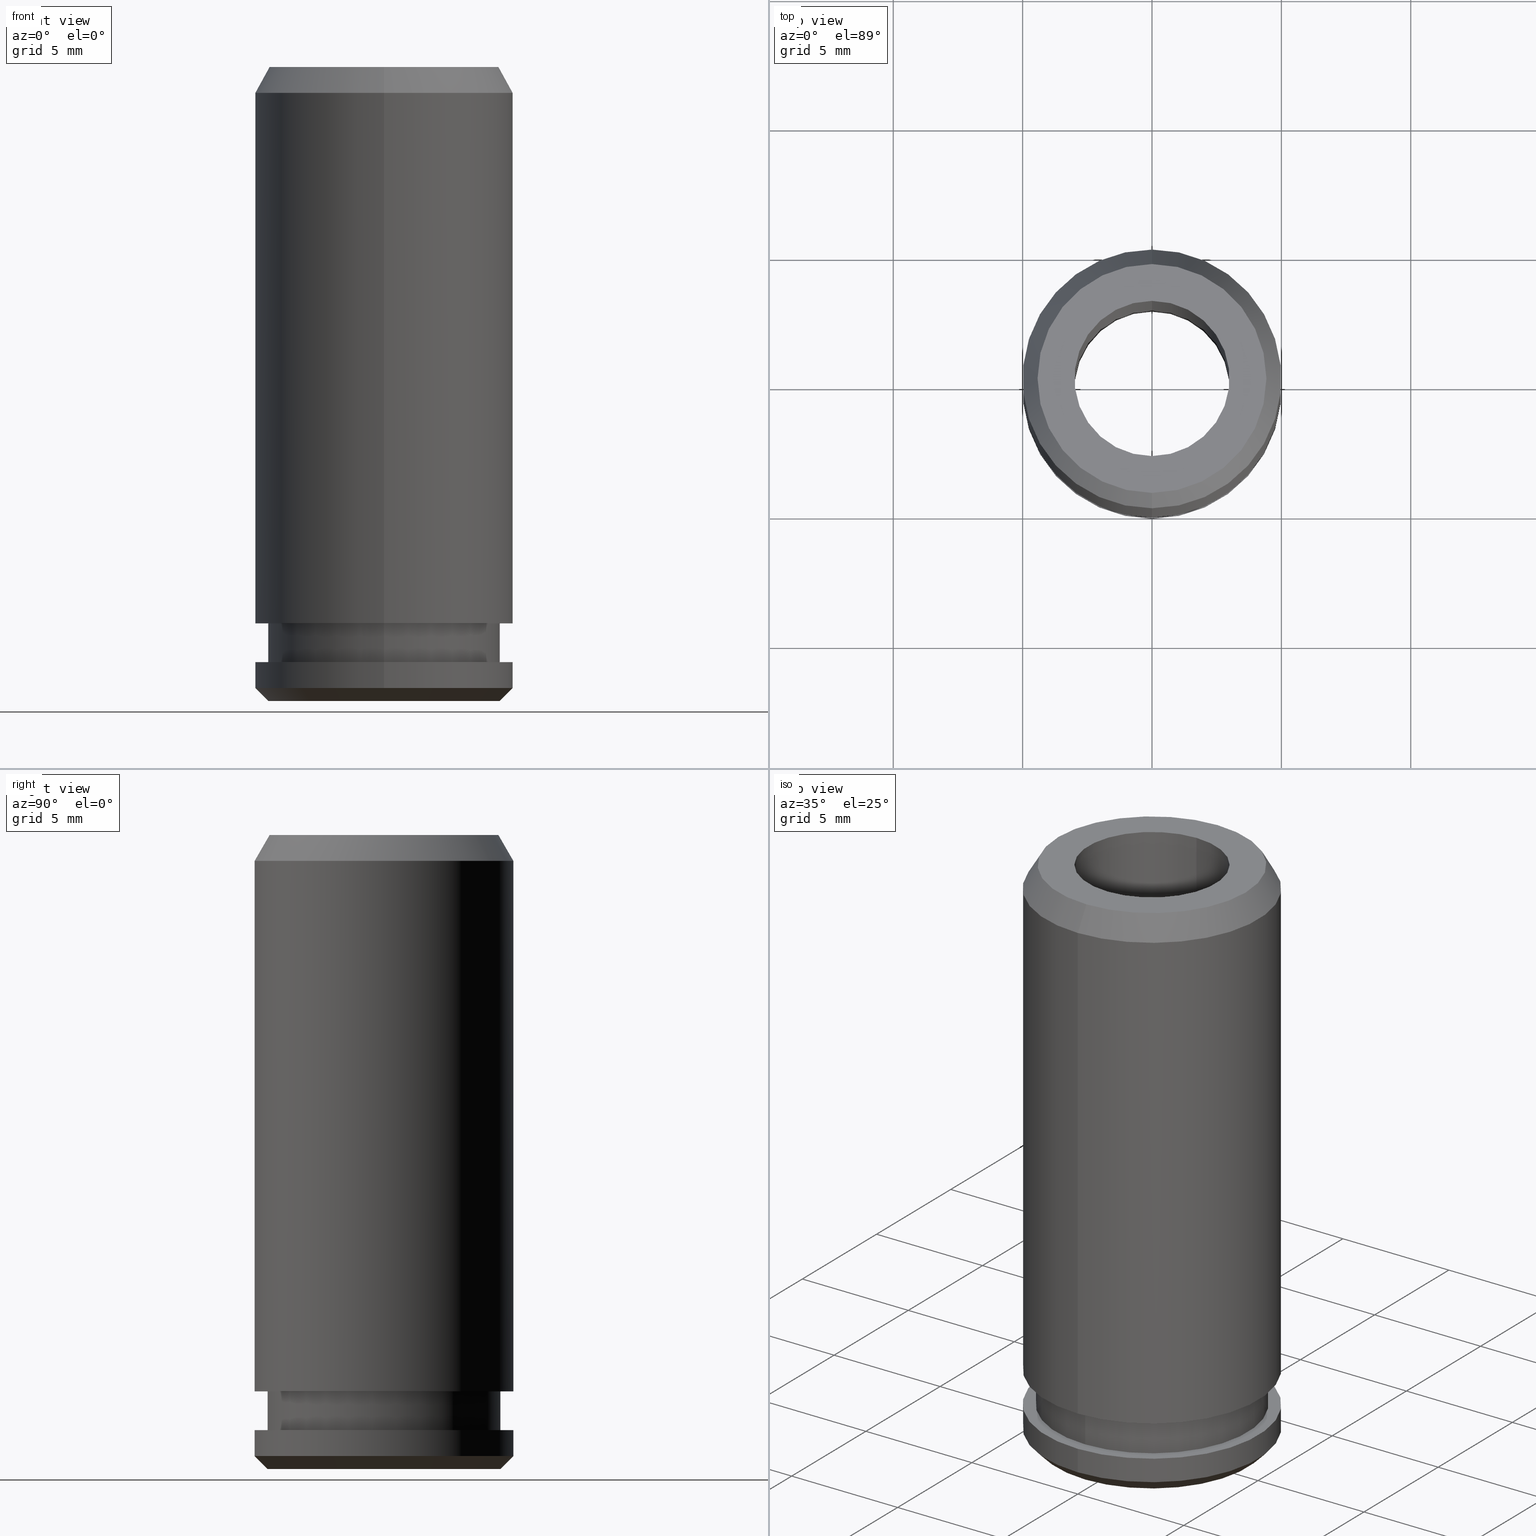
[diagram: canonical four-view strip — front | top / right | iso, engineering-drawing reading convention]
A machine part, canonical four-view strip (front | top / right | iso — engineering-drawing reading convention). The complete STEP part file that produces these views, byte-faithful:
ISO-10303-21;
HEADER;
FILE_DESCRIPTION(('no description'),'unknown implementation level');
FILE_NAME('49BABD9E-ACFB-4AF9-9D39-02AE5C92AB0E_export.stp','  ',('CIMSOURCE GmbH'),('CADClick - KiM GmbH - www.kimweb.de'),'unknown preprocess','ACIS','unknown authorization');
FILE_SCHEMA(('automotive_design'));
ENDSEC;
DATA;
#1=MECHANICAL_DESIGN_GEOMETRIC_PRESENTATION_REPRESENTATION(' ',(#10,#11,#12,#13,#14,#15,#16,#17,#18,#19,#20,#21,#22,#23,#24,#25,#26,#27,#28,#29,#30,#31,#32,#33,#34,#35,#36,#37,#38,#39,#40,#41,#42,#43,#44,#45,#46,#47,#48,#49,#50,#51,#52,#53,#54,#55,#56,#57,#58,#59,#60,#61,#62,#63,#64,#65,#66,#67,#68,#69,#70,#71,#72,#73,#74,#75,#76,#77,#78,#79,#80,#81,#82,#83,#84,#85),#6);
#2=PRODUCT_DEFINITION_CONTEXT('',#86,'design');
#3=APPLICATION_PROTOCOL_DEFINITION('INTERNATIONAL STANDARD','automotive_design',1994,#86);
#4=PRODUCT_CATEGORY_RELATIONSHIP('NONE','NONE',#87,#88);
#5=SHAPE_DEFINITION_REPRESENTATION(#89,#90);
#6= (GEOMETRIC_REPRESENTATION_CONTEXT(3)GLOBAL_UNCERTAINTY_ASSIGNED_CONTEXT((#93))GLOBAL_UNIT_ASSIGNED_CONTEXT((#95,#96,#97))REPRESENTATION_CONTEXT('NONE','WORKSPACE'));
#10=STYLED_ITEM('',(#99),#100);
#11=STYLED_ITEM('',(#101),#102);
#12=STYLED_ITEM('',(#103),#104);
#13=STYLED_ITEM('',(#105),#106);
#14=STYLED_ITEM('',(#107),#108);
#15=STYLED_ITEM('',(#109),#110);
#16=STYLED_ITEM('',(#111),#112);
#17=STYLED_ITEM('',(#113),#114);
#18=STYLED_ITEM('',(#115),#116);
#19=STYLED_ITEM('',(#117),#118);
#20=STYLED_ITEM('',(#119),#120);
#21=STYLED_ITEM('',(#121),#122);
#22=STYLED_ITEM('',(#123),#124);
#23=STYLED_ITEM('',(#125),#126);
#24=STYLED_ITEM('',(#127),#128);
#25=STYLED_ITEM('',(#129),#130);
#26=STYLED_ITEM('',(#131),#132);
#27=STYLED_ITEM('',(#133),#134);
#28=STYLED_ITEM('',(#135),#136);
#29=STYLED_ITEM('',(#137),#138);
#30=STYLED_ITEM('',(#139),#140);
#31=STYLED_ITEM('',(#141),#142);
#32=STYLED_ITEM('',(#143),#144);
#33=STYLED_ITEM('',(#145),#146);
#34=STYLED_ITEM('',(#147),#148);
#35=STYLED_ITEM('',(#149),#150);
#36=STYLED_ITEM('',(#151),#152);
#37=STYLED_ITEM('',(#153),#154);
#38=STYLED_ITEM('',(#155),#156);
#39=STYLED_ITEM('',(#157),#158);
#40=STYLED_ITEM('',(#159),#160);
#41=STYLED_ITEM('',(#161),#162);
#42=STYLED_ITEM('',(#163),#164);
#43=STYLED_ITEM('',(#165),#166);
#44=STYLED_ITEM('',(#167),#168);
#45=STYLED_ITEM('',(#169),#170);
#46=STYLED_ITEM('',(#171),#172);
#47=STYLED_ITEM('',(#173),#174);
#48=STYLED_ITEM('',(#175),#176);
#49=STYLED_ITEM('',(#177),#178);
#50=STYLED_ITEM('',(#179),#180);
#51=STYLED_ITEM('',(#181),#182);
#52=STYLED_ITEM('',(#183),#184);
#53=STYLED_ITEM('',(#185),#186);
#54=STYLED_ITEM('',(#187),#188);
#55=STYLED_ITEM('',(#189),#190);
#56=STYLED_ITEM('',(#191),#192);
#57=STYLED_ITEM('',(#193),#194);
#58=STYLED_ITEM('',(#195),#196);
#59=STYLED_ITEM('',(#197),#198);
#60=STYLED_ITEM('',(#199),#200);
#61=STYLED_ITEM('',(#201),#202);
#62=STYLED_ITEM('',(#203),#204);
#63=STYLED_ITEM('',(#205),#206);
#64=STYLED_ITEM('',(#207),#208);
#65=STYLED_ITEM('',(#209),#210);
#66=STYLED_ITEM('',(#211),#212);
#67=STYLED_ITEM('',(#213),#214);
#68=STYLED_ITEM('',(#215),#216);
#69=STYLED_ITEM('',(#217),#218);
#70=STYLED_ITEM('',(#219),#220);
#71=STYLED_ITEM('',(#221),#222);
#72=STYLED_ITEM('',(#223),#224);
#73=STYLED_ITEM('',(#225),#226);
#74=STYLED_ITEM('',(#227),#228);
#75=STYLED_ITEM('',(#229),#230);
#76=STYLED_ITEM('',(#231),#232);
#77=STYLED_ITEM('',(#233),#234);
#78=STYLED_ITEM('',(#235),#236);
#79=STYLED_ITEM('',(#237),#238);
#80=STYLED_ITEM('',(#239),#240);
#81=STYLED_ITEM('',(#241),#242);
#82=STYLED_ITEM('',(#243),#244);
#83=STYLED_ITEM('',(#245),#246);
#84=STYLED_ITEM('',(#247),#248);
#85=STYLED_ITEM('',(#249),#250);
#86=APPLICATION_CONTEXT(' ');
#87=PRODUCT_CATEGORY('part','NONE');
#88=PRODUCT_RELATED_PRODUCT_CATEGORY('detail',' ',(#251));
#89=PRODUCT_DEFINITION_SHAPE('NONE','NONE',#252);
#90=ADVANCED_BREP_SHAPE_REPRESENTATION('NONE',(#253,#254),#6);
#93=UNCERTAINTY_MEASURE_WITH_UNIT(LENGTH_MEASURE(1.0E-006),#95,'','');
#95= (CONVERSION_BASED_UNIT('MILLIMETRE',#257)LENGTH_UNIT()NAMED_UNIT(#260));
#96= (NAMED_UNIT(#262)PLANE_ANGLE_UNIT()SI_UNIT($,.RADIAN.));
#97= (NAMED_UNIT(#262)SOLID_ANGLE_UNIT()SI_UNIT($,.STERADIAN.));
#99=PRESENTATION_STYLE_ASSIGNMENT((#268));
#100=VERTEX_POINT('NONE',#269);
#101=PRESENTATION_STYLE_ASSIGNMENT((#270));
#102=EDGE_CURVE('NONE',#132,#218,#271,.T.);
#103=PRESENTATION_STYLE_ASSIGNMENT((#272));
#104=EDGE_CURVE('NONE',#120,#222,#273,.T.);
#105=PRESENTATION_STYLE_ASSIGNMENT((#274));
#106=VERTEX_POINT('NONE',#275);
#107=PRESENTATION_STYLE_ASSIGNMENT((#276));
#108=EDGE_CURVE('NONE',#168,#130,#277,.T.);
#109=PRESENTATION_STYLE_ASSIGNMENT((#278));
#110=EDGE_CURVE('NONE',#166,#124,#279,.T.);
#111=PRESENTATION_STYLE_ASSIGNMENT((#280));
#112=ADVANCED_FACE('NONE',(#281,#282),#283,.T.);
#113=PRESENTATION_STYLE_ASSIGNMENT((#284));
#114=EDGE_CURVE('NONE',#244,#120,#285,.T.);
#115=PRESENTATION_STYLE_ASSIGNMENT((#286));
#116=EDGE_CURVE('NONE',#100,#154,#287,.T.);
#117=PRESENTATION_STYLE_ASSIGNMENT((#288));
#118=EDGE_CURVE('NONE',#166,#130,#289,.T.);
#119=PRESENTATION_STYLE_ASSIGNMENT((#290));
#120=VERTEX_POINT('NONE',#291);
#121=PRESENTATION_STYLE_ASSIGNMENT((#292));
#122=VERTEX_POINT('NONE',#293);
#123=PRESENTATION_STYLE_ASSIGNMENT((#294));
#124=VERTEX_POINT('NONE',#295);
#125=PRESENTATION_STYLE_ASSIGNMENT((#296));
#126=VERTEX_POINT('NONE',#297);
#127=PRESENTATION_STYLE_ASSIGNMENT((#298));
#128=VERTEX_POINT('NONE',#299);
#129=PRESENTATION_STYLE_ASSIGNMENT((#300));
#130=VERTEX_POINT('NONE',#301);
#131=PRESENTATION_STYLE_ASSIGNMENT((#302));
#132=VERTEX_POINT('NONE',#303);
#133=PRESENTATION_STYLE_ASSIGNMENT((#304));
#134=VERTEX_POINT('NONE',#305);
#135=PRESENTATION_STYLE_ASSIGNMENT((#306));
#136=EDGE_CURVE('NONE',#222,#238,#307,.T.);
#137=PRESENTATION_STYLE_ASSIGNMENT((#308));
#138=EDGE_CURVE('NONE',#106,#134,#309,.T.);
#139=PRESENTATION_STYLE_ASSIGNMENT((#310));
#140=EDGE_CURVE('NONE',#122,#244,#311,.T.);
#141=PRESENTATION_STYLE_ASSIGNMENT((#312));
#142=ADVANCED_FACE('NONE',(#313),#314,.T.);
#143=PRESENTATION_STYLE_ASSIGNMENT((#315));
#144=EDGE_CURVE('NONE',#106,#128,#316,.T.);
#145=PRESENTATION_STYLE_ASSIGNMENT((#317));
#146=EDGE_CURVE('NONE',#130,#168,#318,.T.);
#147=PRESENTATION_STYLE_ASSIGNMENT((#319));
#148=EDGE_CURVE('NONE',#134,#212,#320,.T.);
#149=PRESENTATION_STYLE_ASSIGNMENT((#321));
#150=EDGE_CURVE('NONE',#100,#164,#322,.T.);
#151=PRESENTATION_STYLE_ASSIGNMENT((#323));
#152=ADVANCED_FACE('NONE',(#324,#325),#326,.T.);
#153=PRESENTATION_STYLE_ASSIGNMENT((#327));
#154=VERTEX_POINT('NONE',#328);
#155=PRESENTATION_STYLE_ASSIGNMENT((#329));
#156=EDGE_CURVE('NONE',#122,#178,#330,.T.);
#157=PRESENTATION_STYLE_ASSIGNMENT((#331));
#158=EDGE_CURVE('NONE',#212,#126,#332,.T.);
#159=PRESENTATION_STYLE_ASSIGNMENT((#333));
#160=ADVANCED_FACE('NONE',(#334),#335,.T.);
#161=PRESENTATION_STYLE_ASSIGNMENT((#336));
#162=ADVANCED_FACE('NONE',(#337),#338,.T.);
#163=PRESENTATION_STYLE_ASSIGNMENT((#339));
#164=VERTEX_POINT('NONE',#340);
#165=PRESENTATION_STYLE_ASSIGNMENT((#341));
#166=VERTEX_POINT('NONE',#342);
#167=PRESENTATION_STYLE_ASSIGNMENT((#343));
#168=VERTEX_POINT('NONE',#344);
#169=PRESENTATION_STYLE_ASSIGNMENT((#345));
#170=ADVANCED_FACE('NONE',(#346),#347,.T.);
#171=PRESENTATION_STYLE_ASSIGNMENT((#348));
#172=ADVANCED_FACE('NONE',(#349),#350,.F.);
#173=PRESENTATION_STYLE_ASSIGNMENT((#351));
#174=EDGE_CURVE('NONE',#218,#168,#352,.T.);
#175=PRESENTATION_STYLE_ASSIGNMENT((#353));
#176=EDGE_CURVE('NONE',#244,#238,#354,.T.);
#177=PRESENTATION_STYLE_ASSIGNMENT((#355));
#178=VERTEX_POINT('NONE',#356);
#179=PRESENTATION_STYLE_ASSIGNMENT((#357));
#180=ADVANCED_FACE('NONE',(#358),#359,.T.);
#181=PRESENTATION_STYLE_ASSIGNMENT((#360));
#182=EDGE_CURVE('NONE',#124,#166,#361,.T.);
#183=PRESENTATION_STYLE_ASSIGNMENT((#362));
#184=EDGE_CURVE('NONE',#178,#120,#363,.T.);
#185=PRESENTATION_STYLE_ASSIGNMENT((#364));
#186=ADVANCED_FACE('NONE',(#365),#366,.F.);
#187=PRESENTATION_STYLE_ASSIGNMENT((#367));
#188=EDGE_CURVE('NONE',#242,#164,#368,.T.);
#189=PRESENTATION_STYLE_ASSIGNMENT((#369));
#190=ADVANCED_FACE('NONE',(#370),#371,.F.);
#191=PRESENTATION_STYLE_ASSIGNMENT((#372));
#192=EDGE_CURVE('NONE',#126,#198,#373,.T.);
#193=PRESENTATION_STYLE_ASSIGNMENT((#374));
#194=EDGE_CURVE('NONE',#198,#126,#375,.T.);
#195=PRESENTATION_STYLE_ASSIGNMENT((#376));
#196=EDGE_CURVE('NONE',#238,#222,#377,.T.);
#197=PRESENTATION_STYLE_ASSIGNMENT((#378));
#198=VERTEX_POINT('NONE',#379);
#199=PRESENTATION_STYLE_ASSIGNMENT((#380));
#200=ADVANCED_FACE('NONE',(#381,#382),#383,.T.);
#201=PRESENTATION_STYLE_ASSIGNMENT((#384));
#202=EDGE_CURVE('NONE',#154,#100,#385,.T.);
#203=PRESENTATION_STYLE_ASSIGNMENT((#386));
#204=EDGE_CURVE('NONE',#128,#212,#387,.T.);
#205=PRESENTATION_STYLE_ASSIGNMENT((#388));
#206=EDGE_CURVE('NONE',#178,#122,#389,.T.);
#207=PRESENTATION_STYLE_ASSIGNMENT((#390));
#208=ADVANCED_FACE('NONE',(#391),#392,.T.);
#209=PRESENTATION_STYLE_ASSIGNMENT((#393));
#210=EDGE_CURVE('NONE',#132,#130,#394,.T.);
#211=PRESENTATION_STYLE_ASSIGNMENT((#395));
#212=VERTEX_POINT('NONE',#396);
#213=PRESENTATION_STYLE_ASSIGNMENT((#397));
#214=ADVANCED_FACE('NONE',(#398),#399,.F.);
#215=PRESENTATION_STYLE_ASSIGNMENT((#400));
#216=ADVANCED_FACE('NONE',(#401,#402),#403,.T.);
#217=PRESENTATION_STYLE_ASSIGNMENT((#404));
#218=VERTEX_POINT('NONE',#405);
#219=PRESENTATION_STYLE_ASSIGNMENT((#406));
#220=EDGE_CURVE('NONE',#164,#242,#407,.T.);
#221=PRESENTATION_STYLE_ASSIGNMENT((#408));
#222=VERTEX_POINT('NONE',#409);
#223=PRESENTATION_STYLE_ASSIGNMENT((#410));
#224=ADVANCED_FACE('NONE',(#411),#412,.T.);
#225=PRESENTATION_STYLE_ASSIGNMENT((#413));
#226=ADVANCED_FACE('NONE',(#414),#415,.T.);
#227=PRESENTATION_STYLE_ASSIGNMENT((#416));
#228=EDGE_CURVE('NONE',#218,#132,#417,.T.);
#229=PRESENTATION_STYLE_ASSIGNMENT((#418));
#230=EDGE_CURVE('NONE',#128,#106,#419,.T.);
#231=PRESENTATION_STYLE_ASSIGNMENT((#420));
#232=EDGE_CURVE('NONE',#212,#134,#421,.T.);
#233=PRESENTATION_STYLE_ASSIGNMENT((#422));
#234=EDGE_CURVE('NONE',#134,#198,#423,.T.);
#235=PRESENTATION_STYLE_ASSIGNMENT((#424));
#236=EDGE_CURVE('NONE',#124,#168,#425,.T.);
#237=PRESENTATION_STYLE_ASSIGNMENT((#426));
#238=VERTEX_POINT('NONE',#427);
#239=PRESENTATION_STYLE_ASSIGNMENT((#428));
#240=ADVANCED_FACE('NONE',(#429),#430,.T.);
#241=PRESENTATION_STYLE_ASSIGNMENT((#431));
#242=VERTEX_POINT('NONE',#432);
#243=PRESENTATION_STYLE_ASSIGNMENT((#433));
#244=VERTEX_POINT('NONE',#434);
#245=PRESENTATION_STYLE_ASSIGNMENT((#435));
#246=EDGE_CURVE('NONE',#154,#242,#436,.T.);
#247=PRESENTATION_STYLE_ASSIGNMENT((#437));
#248=EDGE_CURVE('NONE',#120,#244,#438,.T.);
#249=PRESENTATION_STYLE_ASSIGNMENT((#439));
#250=ADVANCED_FACE('NONE',(#440),#441,.T.);
#251=PRODUCT('NONE','NONE','PART-NONE-DESC',(#442));
#252=PRODUCT_DEFINITION('NONE','NONE',#443,#2);
#253=MANIFOLD_SOLID_BREP('NONE',#444);
#254=AXIS2_PLACEMENT_3D('',#445,#446,#447);
#257=LENGTH_MEASURE_WITH_UNIT(LENGTH_MEASURE(1.0),#448);
#260=DIMENSIONAL_EXPONENTS(1.0,0.0,0.0,0.0,0.0,0.0,0.0);
#262=DIMENSIONAL_EXPONENTS(0.0,0.0,0.0,0.0,0.0,0.0,0.0);
#268=POINT_STYLE(' ',#449,POSITIVE_LENGTH_MEASURE(1.0E-006),#450);
#269=CARTESIAN_POINT('',(-5.5107285922007E-016,4.5,3.0));
#270=CURVE_STYLE('',#451,POSITIVE_LENGTH_MEASURE(1.0E-006),#452);
#271=CIRCLE('',#453,4.5);
#272=CURVE_STYLE('',#454,POSITIVE_LENGTH_MEASURE(1.0E-006),#455);
#273=LINE('',#456,#457);
#274=POINT_STYLE(' ',#458,POSITIVE_LENGTH_MEASURE(1.0E-006),#459);
#275=CARTESIAN_POINT('',(-5.76951836509654E-016,4.42264973081037,24.5));
#276=CURVE_STYLE('',#460,POSITIVE_LENGTH_MEASURE(1.0E-006),#461);
#277=CIRCLE('',#462,5.0);
#278=CURVE_STYLE('',#463,POSITIVE_LENGTH_MEASURE(1.0E-006),#464);
#279=CIRCLE('',#465,5.0);
#280=SURFACE_STYLE_USAGE(.BOTH.,#466);
#281=FACE_OUTER_BOUND('',#467,.T.);
#282=FACE_BOUND('',#468,.T.);
#283=PLANE('',#469);
#284=CURVE_STYLE('',#470,POSITIVE_LENGTH_MEASURE(1.0E-006),#471);
#285=CIRCLE('',#472,3.0);
#286=CURVE_STYLE('',#473,POSITIVE_LENGTH_MEASURE(1.0E-006),#474);
#287=CIRCLE('',#475,4.5);
#288=CURVE_STYLE('',#476,POSITIVE_LENGTH_MEASURE(1.0E-006),#477);
#289=LINE('',#478,#479);
#290=POINT_STYLE(' ',#480,POSITIVE_LENGTH_MEASURE(1.0E-006),#481);
#291=CARTESIAN_POINT('',(-3.67381906146713E-016,3.0,0.519615242270668));
#292=POINT_STYLE(' ',#482,POSITIVE_LENGTH_MEASURE(1.0E-006),#483);
#293=CARTESIAN_POINT('',(0.0,-3.0,24.5));
#294=POINT_STYLE(' ',#484,POSITIVE_LENGTH_MEASURE(1.0E-006),#485);
#295=CARTESIAN_POINT('',(0.0,-5.0,1.5));
#296=POINT_STYLE(' ',#486,POSITIVE_LENGTH_MEASURE(1.0E-006),#487);
#297=CARTESIAN_POINT('',(0.0,-5.0,3.0));
#298=POINT_STYLE(' ',#488,POSITIVE_LENGTH_MEASURE(1.0E-006),#489);
#299=CARTESIAN_POINT('',(0.0,-4.42264973081037,24.5));
#300=POINT_STYLE(' ',#490,POSITIVE_LENGTH_MEASURE(1.0E-006),#491);
#301=CARTESIAN_POINT('',(0.0,5.0,0.5));
#302=POINT_STYLE(' ',#492,POSITIVE_LENGTH_MEASURE(1.0E-006),#493);
#303=CARTESIAN_POINT('',(0.0,4.5,0.0));
#304=POINT_STYLE(' ',#494,POSITIVE_LENGTH_MEASURE(1.0E-006),#495);
#305=CARTESIAN_POINT('',(-6.12303176911188E-016,5.0,23.5));
#306=CURVE_STYLE('',#496,POSITIVE_LENGTH_MEASURE(1.0E-006),#497);
#307=CIRCLE('',#498,3.3);
#308=CURVE_STYLE('',#499,POSITIVE_LENGTH_MEASURE(1.0E-006),#500);
#309=LINE('',#501,#502);
#310=CURVE_STYLE('',#503,POSITIVE_LENGTH_MEASURE(1.0E-006),#504);
#311=LINE('',#505,#506);
#312=SURFACE_STYLE_USAGE(.BOTH.,#507);
#313=FACE_OUTER_BOUND('',#508,.T.);
#314=CONICAL_SURFACE('',#509,4.5,0.785398163397447);
#315=CURVE_STYLE('',#510,POSITIVE_LENGTH_MEASURE(1.0E-006),#511);
#316=CIRCLE('',#512,4.42264973081037);
#317=CURVE_STYLE('',#513,POSITIVE_LENGTH_MEASURE(1.0E-006),#514);
#318=CIRCLE('',#515,5.0);
#319=CURVE_STYLE('',#516,POSITIVE_LENGTH_MEASURE(1.0E-006),#517);
#320=CIRCLE('',#518,5.0);
#321=CURVE_STYLE('',#519,POSITIVE_LENGTH_MEASURE(1.0E-006),#520);
#322=LINE('',#521,#522);
#323=SURFACE_STYLE_USAGE(.BOTH.,#523);
#324=FACE_OUTER_BOUND('',#524,.T.);
#325=FACE_BOUND('',#525,.T.);
#326=PLANE('',#526);
#327=POINT_STYLE(' ',#527,POSITIVE_LENGTH_MEASURE(1.0E-006),#528);
#328=CARTESIAN_POINT('',(0.0,-4.5,3.0));
#329=CURVE_STYLE('',#529,POSITIVE_LENGTH_MEASURE(1.0E-006),#530);
#330=CIRCLE('',#531,3.0);
#331=CURVE_STYLE('',#532,POSITIVE_LENGTH_MEASURE(1.0E-006),#533);
#332=LINE('',#534,#535);
#333=SURFACE_STYLE_USAGE(.BOTH.,#536);
#334=FACE_OUTER_BOUND('',#537,.T.);
#335=CYLINDRICAL_SURFACE('',#538,5.0);
#336=SURFACE_STYLE_USAGE(.BOTH.,#539);
#337=FACE_OUTER_BOUND('',#540,.T.);
#338=CONICAL_SURFACE('',#541,4.5,0.785398163397447);
#339=POINT_STYLE(' ',#542,POSITIVE_LENGTH_MEASURE(1.0E-006),#543);
#340=CARTESIAN_POINT('',(-5.5107285922007E-016,4.5,1.5));
#341=POINT_STYLE(' ',#544,POSITIVE_LENGTH_MEASURE(1.0E-006),#545);
#342=CARTESIAN_POINT('',(-6.12303176911189E-016,5.0,1.5));
#343=POINT_STYLE(' ',#546,POSITIVE_LENGTH_MEASURE(1.0E-006),#547);
#344=CARTESIAN_POINT('',(-6.12303176911189E-016,-5.0,0.5));
#345=SURFACE_STYLE_USAGE(.BOTH.,#548);
#346=FACE_OUTER_BOUND('',#549,.T.);
#347=CYLINDRICAL_SURFACE('',#550,5.0);
#348=SURFACE_STYLE_USAGE(.BOTH.,#551);
#349=FACE_OUTER_BOUND('',#552,.T.);
#350=CYLINDRICAL_SURFACE('',#553,3.0);
#351=CURVE_STYLE('',#554,POSITIVE_LENGTH_MEASURE(1.0E-006),#555);
#352=LINE('',#556,#557);
#353=CURVE_STYLE('',#558,POSITIVE_LENGTH_MEASURE(1.0E-006),#559);
#354=LINE('',#560,#561);
#355=POINT_STYLE(' ',#562,POSITIVE_LENGTH_MEASURE(1.0E-006),#563);
#356=CARTESIAN_POINT('',(-3.67381906146713E-016,3.0,24.5));
#357=SURFACE_STYLE_USAGE(.BOTH.,#564);
#358=FACE_OUTER_BOUND('',#565,.T.);
#359=CYLINDRICAL_SURFACE('',#566,4.5);
#360=CURVE_STYLE('',#567,POSITIVE_LENGTH_MEASURE(1.0E-006),#568);
#361=CIRCLE('',#569,5.0);
#362=CURVE_STYLE('',#570,POSITIVE_LENGTH_MEASURE(1.0E-006),#571);
#363=LINE('',#572,#573);
#364=SURFACE_STYLE_USAGE(.BOTH.,#574);
#365=FACE_OUTER_BOUND('',#575,.T.);
#366=CONICAL_SURFACE('',#576,3.0,0.523598775598301);
#367=CURVE_STYLE('',#577,POSITIVE_LENGTH_MEASURE(1.0E-006),#578);
#368=CIRCLE('',#579,4.5);
#369=SURFACE_STYLE_USAGE(.BOTH.,#580);
#370=FACE_OUTER_BOUND('',#581,.T.);
#371=CONICAL_SURFACE('',#582,3.0,0.523598775598301);
#372=CURVE_STYLE('',#583,POSITIVE_LENGTH_MEASURE(1.0E-006),#584);
#373=CIRCLE('',#585,5.0);
#374=CURVE_STYLE('',#586,POSITIVE_LENGTH_MEASURE(1.0E-006),#587);
#375=CIRCLE('',#588,5.0);
#376=CURVE_STYLE('',#589,POSITIVE_LENGTH_MEASURE(1.0E-006),#590);
#377=CIRCLE('',#591,3.3);
#378=POINT_STYLE(' ',#592,POSITIVE_LENGTH_MEASURE(1.0E-006),#593);
#379=CARTESIAN_POINT('',(-6.12303176911189E-016,5.0,3.0));
#380=SURFACE_STYLE_USAGE(.BOTH.,#594);
#381=FACE_OUTER_BOUND('',#595,.T.);
#382=FACE_BOUND('',#596,.T.);
#383=PLANE('',#597);
#384=CURVE_STYLE('',#598,POSITIVE_LENGTH_MEASURE(1.0E-006),#599);
#385=CIRCLE('',#600,4.5);
#386=CURVE_STYLE('',#601,POSITIVE_LENGTH_MEASURE(1.0E-006),#602);
#387=LINE('',#603,#604);
#388=CURVE_STYLE('',#605,POSITIVE_LENGTH_MEASURE(1.0E-006),#606);
#389=CIRCLE('',#607,3.0);
#390=SURFACE_STYLE_USAGE(.BOTH.,#608);
#391=FACE_OUTER_BOUND('',#609,.T.);
#392=CONICAL_SURFACE('',#610,5.0,0.5235987755983);
#393=CURVE_STYLE('',#611,POSITIVE_LENGTH_MEASURE(1.0E-006),#612);
#394=LINE('',#613,#614);
#395=POINT_STYLE(' ',#615,POSITIVE_LENGTH_MEASURE(1.0E-006),#616);
#396=CARTESIAN_POINT('',(0.0,-5.0,23.5));
#397=SURFACE_STYLE_USAGE(.BOTH.,#617);
#398=FACE_OUTER_BOUND('',#618,.T.);
#399=CYLINDRICAL_SURFACE('',#619,3.0);
#400=SURFACE_STYLE_USAGE(.BOTH.,#620);
#401=FACE_OUTER_BOUND('',#621,.T.);
#402=FACE_BOUND('',#622,.T.);
#403=PLANE('',#623);
#404=POINT_STYLE(' ',#624,POSITIVE_LENGTH_MEASURE(1.0E-006),#625);
#405=CARTESIAN_POINT('',(-5.81688018065629E-016,-4.5,0.0));
#406=CURVE_STYLE('',#626,POSITIVE_LENGTH_MEASURE(1.0E-006),#627);
#407=CIRCLE('',#628,4.5);
#408=POINT_STYLE(' ',#629,POSITIVE_LENGTH_MEASURE(1.0E-006),#630);
#409=CARTESIAN_POINT('',(-4.04120096761385E-016,3.3,0.0));
#410=SURFACE_STYLE_USAGE(.BOTH.,#631);
#411=FACE_OUTER_BOUND('',#632,.T.);
#412=CONICAL_SURFACE('',#633,5.0,0.5235987755983);
#413=SURFACE_STYLE_USAGE(.BOTH.,#634);
#414=FACE_OUTER_BOUND('',#635,.T.);
#415=CYLINDRICAL_SURFACE('',#636,5.0);
#416=CURVE_STYLE('',#637,POSITIVE_LENGTH_MEASURE(1.0E-006),#638);
#417=CIRCLE('',#639,4.5);
#418=CURVE_STYLE('',#640,POSITIVE_LENGTH_MEASURE(1.0E-006),#641);
#419=CIRCLE('',#642,4.42264973081037);
#420=CURVE_STYLE('',#643,POSITIVE_LENGTH_MEASURE(1.0E-006),#644);
#421=CIRCLE('',#645,5.0);
#422=CURVE_STYLE('',#646,POSITIVE_LENGTH_MEASURE(1.0E-006),#647);
#423=LINE('',#648,#649);
#424=CURVE_STYLE('',#650,POSITIVE_LENGTH_MEASURE(1.0E-006),#651);
#425=LINE('',#652,#653);
#426=POINT_STYLE(' ',#654,POSITIVE_LENGTH_MEASURE(1.0E-006),#655);
#427=CARTESIAN_POINT('',(0.0,-3.3,0.0));
#428=SURFACE_STYLE_USAGE(.BOTH.,#656);
#429=FACE_OUTER_BOUND('',#657,.T.);
#430=CYLINDRICAL_SURFACE('',#658,5.0);
#431=POINT_STYLE(' ',#659,POSITIVE_LENGTH_MEASURE(1.0E-006),#660);
#432=CARTESIAN_POINT('',(0.0,-4.5,1.5));
#433=POINT_STYLE(' ',#661,POSITIVE_LENGTH_MEASURE(1.0E-006),#662);
#434=CARTESIAN_POINT('',(0.0,-3.0,0.519615242270668));
#435=CURVE_STYLE('',#663,POSITIVE_LENGTH_MEASURE(1.0E-006),#664);
#436=LINE('',#665,#666);
#437=CURVE_STYLE('',#667,POSITIVE_LENGTH_MEASURE(1.0E-006),#668);
#438=CIRCLE('',#669,3.0);
#439=SURFACE_STYLE_USAGE(.BOTH.,#670);
#440=FACE_OUTER_BOUND('',#671,.T.);
#441=CYLINDRICAL_SURFACE('',#672,4.5);
#442=PRODUCT_CONTEXT('',#86,'mechanical');
#443=PRODUCT_DEFINITION_FORMATION_WITH_SPECIFIED_SOURCE(' ','NONE',#251,.NOT_KNOWN.);
#444=CLOSED_SHELL('',(#208,#226,#250,#160,#162,#190,#172,#216,#214,#186,#152,#142,#170,#200,#180,#112,#240,#224));
#445=CARTESIAN_POINT('',(0.0,0.0,0.0));
#446=DIRECTION('',(0.0,0.0,1.0));
#447=DIRECTION('',(1.0,0.0,0.0));
#448= (NAMED_UNIT(#260)LENGTH_UNIT()SI_UNIT(.MILLI.,.METRE.));
#449=PRE_DEFINED_MARKER('');
#450=COLOUR_RGB('', 0.5, 0.5, 0.5);
#451=DRAUGHTING_PRE_DEFINED_CURVE_FONT('continuous');
#452=COLOUR_RGB('', 0.5, 0.5, 0.5);
#453=AXIS2_PLACEMENT_3D('',#674,#675,#676);
#454=DRAUGHTING_PRE_DEFINED_CURVE_FONT('continuous');
#455=COLOUR_RGB('', 0.5, 0.5, 0.5);
#456=CARTESIAN_POINT('',(-3.67381906146713E-016,3.0,0.519615242270668));
#457=VECTOR('',#677,1000.0);
#458=PRE_DEFINED_MARKER('');
#459=COLOUR_RGB('', 0.5, 0.5, 0.5);
#460=DRAUGHTING_PRE_DEFINED_CURVE_FONT('continuous');
#461=COLOUR_RGB('', 0.5, 0.5, 0.5);
#462=AXIS2_PLACEMENT_3D('',#678,#679,#680);
#463=DRAUGHTING_PRE_DEFINED_CURVE_FONT('continuous');
#464=COLOUR_RGB('', 0.5, 0.5, 0.5);
#465=AXIS2_PLACEMENT_3D('',#681,#682,#683);
#466=SURFACE_SIDE_STYLE('',(#684));
#467=EDGE_LOOP('',(#685,#686));
#468=EDGE_LOOP('',(#687,#688));
#469=AXIS2_PLACEMENT_3D('',#689,#690,#691);
#470=DRAUGHTING_PRE_DEFINED_CURVE_FONT('continuous');
#471=COLOUR_RGB('', 0.5, 0.5, 0.5);
#472=AXIS2_PLACEMENT_3D('',#692,#693,#694);
#473=DRAUGHTING_PRE_DEFINED_CURVE_FONT('continuous');
#474=COLOUR_RGB('', 0.5, 0.5, 0.5);
#475=AXIS2_PLACEMENT_3D('',#695,#696,#697);
#476=DRAUGHTING_PRE_DEFINED_CURVE_FONT('continuous');
#477=COLOUR_RGB('', 0.5, 0.5, 0.5);
#478=CARTESIAN_POINT('',(-6.12303176911189E-016,5.0,-1.13644490972339));
#479=VECTOR('',#698,1000.0);
#480=PRE_DEFINED_MARKER('');
#481=COLOUR_RGB('', 0.5, 0.5, 0.5);
#482=PRE_DEFINED_MARKER('');
#483=COLOUR_RGB('', 0.5, 0.5, 0.5);
#484=PRE_DEFINED_MARKER('');
#485=COLOUR_RGB('', 0.5, 0.5, 0.5);
#486=PRE_DEFINED_MARKER('');
#487=COLOUR_RGB('', 0.5, 0.5, 0.5);
#488=PRE_DEFINED_MARKER('');
#489=COLOUR_RGB('', 0.5, 0.5, 0.5);
#490=PRE_DEFINED_MARKER('');
#491=COLOUR_RGB('', 0.5, 0.5, 0.5);
#492=PRE_DEFINED_MARKER('');
#493=COLOUR_RGB('', 0.5, 0.5, 0.5);
#494=PRE_DEFINED_MARKER('');
#495=COLOUR_RGB('', 0.5, 0.5, 0.5);
#496=DRAUGHTING_PRE_DEFINED_CURVE_FONT('continuous');
#497=COLOUR_RGB('', 0.5, 0.5, 0.5);
#498=AXIS2_PLACEMENT_3D('',#699,#700,#701);
#499=DRAUGHTING_PRE_DEFINED_CURVE_FONT('continuous');
#500=COLOUR_RGB('', 0.5, 0.5, 0.5);
#501=CARTESIAN_POINT('',(-6.12303176911188E-016,5.0,23.5));
#502=VECTOR('',#702,1000.0);
#503=DRAUGHTING_PRE_DEFINED_CURVE_FONT('continuous');
#504=COLOUR_RGB('', 0.5, 0.5, 0.5);
#505=CARTESIAN_POINT('',(0.0,-3.0,-1.13644490972339));
#506=VECTOR('',#703,1000.0);
#507=SURFACE_SIDE_STYLE('',(#704));
#508=EDGE_LOOP('',(#705,#706,#707,#708));
#509=AXIS2_PLACEMENT_3D('',#709,#710,#711);
#510=DRAUGHTING_PRE_DEFINED_CURVE_FONT('continuous');
#511=COLOUR_RGB('', 0.5, 0.5, 0.5);
#512=AXIS2_PLACEMENT_3D('',#712,#713,#714);
#513=DRAUGHTING_PRE_DEFINED_CURVE_FONT('continuous');
#514=COLOUR_RGB('', 0.5, 0.5, 0.5);
#515=AXIS2_PLACEMENT_3D('',#715,#716,#717);
#516=DRAUGHTING_PRE_DEFINED_CURVE_FONT('continuous');
#517=COLOUR_RGB('', 0.5, 0.5, 0.5);
#518=AXIS2_PLACEMENT_3D('',#718,#719,#720);
#519=DRAUGHTING_PRE_DEFINED_CURVE_FONT('continuous');
#520=COLOUR_RGB('', 0.5, 0.5, 0.5);
#521=CARTESIAN_POINT('',(-5.5107285922007E-016,4.5,-1.13644490972339));
#522=VECTOR('',#721,1000.0);
#523=SURFACE_SIDE_STYLE('',(#722));
#524=EDGE_LOOP('',(#723,#724));
#525=EDGE_LOOP('',(#725,#726));
#526=AXIS2_PLACEMENT_3D('',#727,#728,#729);
#527=PRE_DEFINED_MARKER('');
#528=COLOUR_RGB('', 0.5, 0.5, 0.5);
#529=DRAUGHTING_PRE_DEFINED_CURVE_FONT('continuous');
#530=COLOUR_RGB('', 0.5, 0.5, 0.5);
#531=AXIS2_PLACEMENT_3D('',#730,#731,#732);
#532=DRAUGHTING_PRE_DEFINED_CURVE_FONT('continuous');
#533=COLOUR_RGB('', 0.5, 0.5, 0.5);
#534=CARTESIAN_POINT('',(0.0,-5.0,-1.13644490972339));
#535=VECTOR('',#733,1000.0);
#536=SURFACE_SIDE_STYLE('',(#734));
#537=EDGE_LOOP('',(#735,#736,#737,#738));
#538=AXIS2_PLACEMENT_3D('',#739,#740,#741);
#539=SURFACE_SIDE_STYLE('',(#742));
#540=EDGE_LOOP('',(#743,#744,#745,#746));
#541=AXIS2_PLACEMENT_3D('',#747,#748,#749);
#542=PRE_DEFINED_MARKER('');
#543=COLOUR_RGB('', 0.5, 0.5, 0.5);
#544=PRE_DEFINED_MARKER('');
#545=COLOUR_RGB('', 0.5, 0.5, 0.5);
#546=PRE_DEFINED_MARKER('');
#547=COLOUR_RGB('', 0.5, 0.5, 0.5);
#548=SURFACE_SIDE_STYLE('',(#750));
#549=EDGE_LOOP('',(#751,#752,#753,#754));
#550=AXIS2_PLACEMENT_3D('',#755,#756,#757);
#551=SURFACE_SIDE_STYLE('',(#758));
#552=EDGE_LOOP('',(#759,#760,#761,#762));
#553=AXIS2_PLACEMENT_3D('',#763,#764,#765);
#554=DRAUGHTING_PRE_DEFINED_CURVE_FONT('continuous');
#555=COLOUR_RGB('', 0.5, 0.5, 0.5);
#556=CARTESIAN_POINT('',(-5.5107285922007E-016,-4.5,0.0));
#557=VECTOR('',#766,1000.0);
#558=DRAUGHTING_PRE_DEFINED_CURVE_FONT('continuous');
#559=COLOUR_RGB('', 0.5, 0.5, 0.5);
#560=CARTESIAN_POINT('',(0.0,-3.0,0.519615242270668));
#561=VECTOR('',#767,1000.0);
#562=PRE_DEFINED_MARKER('');
#563=COLOUR_RGB('', 0.5, 0.5, 0.5);
#564=SURFACE_SIDE_STYLE('',(#768));
#565=EDGE_LOOP('',(#769,#770,#771,#772));
#566=AXIS2_PLACEMENT_3D('',#773,#774,#775);
#567=DRAUGHTING_PRE_DEFINED_CURVE_FONT('continuous');
#568=COLOUR_RGB('', 0.5, 0.5, 0.5);
#569=AXIS2_PLACEMENT_3D('',#776,#777,#778);
#570=DRAUGHTING_PRE_DEFINED_CURVE_FONT('continuous');
#571=COLOUR_RGB('', 0.5, 0.5, 0.5);
#572=CARTESIAN_POINT('',(-3.67381906146713E-016,3.0,-1.13644490972339));
#573=VECTOR('',#779,1000.0);
#574=SURFACE_SIDE_STYLE('',(#780));
#575=EDGE_LOOP('',(#781,#782,#783,#784));
#576=AXIS2_PLACEMENT_3D('',#785,#786,#787);
#577=DRAUGHTING_PRE_DEFINED_CURVE_FONT('continuous');
#578=COLOUR_RGB('', 0.5, 0.5, 0.5);
#579=AXIS2_PLACEMENT_3D('',#788,#789,#790);
#580=SURFACE_SIDE_STYLE('',(#791));
#581=EDGE_LOOP('',(#792,#793,#794,#795));
#582=AXIS2_PLACEMENT_3D('',#796,#797,#798);
#583=DRAUGHTING_PRE_DEFINED_CURVE_FONT('continuous');
#584=COLOUR_RGB('', 0.5, 0.5, 0.5);
#585=AXIS2_PLACEMENT_3D('',#799,#800,#801);
#586=DRAUGHTING_PRE_DEFINED_CURVE_FONT('continuous');
#587=COLOUR_RGB('', 0.5, 0.5, 0.5);
#588=AXIS2_PLACEMENT_3D('',#802,#803,#804);
#589=DRAUGHTING_PRE_DEFINED_CURVE_FONT('continuous');
#590=COLOUR_RGB('', 0.5, 0.5, 0.5);
#591=AXIS2_PLACEMENT_3D('',#805,#806,#807);
#592=PRE_DEFINED_MARKER('');
#593=COLOUR_RGB('', 0.5, 0.5, 0.5);
#594=SURFACE_SIDE_STYLE('',(#808));
#595=EDGE_LOOP('',(#809,#810));
#596=EDGE_LOOP('',(#811,#812));
#597=AXIS2_PLACEMENT_3D('',#813,#814,#815);
#598=DRAUGHTING_PRE_DEFINED_CURVE_FONT('continuous');
#599=COLOUR_RGB('', 0.5, 0.5, 0.5);
#600=AXIS2_PLACEMENT_3D('',#816,#817,#818);
#601=DRAUGHTING_PRE_DEFINED_CURVE_FONT('continuous');
#602=COLOUR_RGB('', 0.5, 0.5, 0.5);
#603=CARTESIAN_POINT('',(0.0,-5.0,23.5));
#604=VECTOR('',#819,1000.0);
#605=DRAUGHTING_PRE_DEFINED_CURVE_FONT('continuous');
#606=COLOUR_RGB('', 0.5, 0.5, 0.5);
#607=AXIS2_PLACEMENT_3D('',#820,#821,#822);
#608=SURFACE_SIDE_STYLE('',(#823));
#609=EDGE_LOOP('',(#824,#825,#826,#827));
#610=AXIS2_PLACEMENT_3D('',#828,#829,#830);
#611=DRAUGHTING_PRE_DEFINED_CURVE_FONT('continuous');
#612=COLOUR_RGB('', 0.5, 0.5, 0.5);
#613=CARTESIAN_POINT('',(0.0,4.5,0.0));
#614=VECTOR('',#831,1000.0);
#615=PRE_DEFINED_MARKER('');
#616=COLOUR_RGB('', 0.5, 0.5, 0.5);
#617=SURFACE_SIDE_STYLE('',(#832));
#618=EDGE_LOOP('',(#833,#834,#835,#836));
#619=AXIS2_PLACEMENT_3D('',#837,#838,#839);
#620=SURFACE_SIDE_STYLE('',(#840));
#621=EDGE_LOOP('',(#841,#842));
#622=EDGE_LOOP('',(#843,#844));
#623=AXIS2_PLACEMENT_3D('',#845,#846,#847);
#624=PRE_DEFINED_MARKER('');
#625=COLOUR_RGB('', 0.5, 0.5, 0.5);
#626=DRAUGHTING_PRE_DEFINED_CURVE_FONT('continuous');
#627=COLOUR_RGB('', 0.5, 0.5, 0.5);
#628=AXIS2_PLACEMENT_3D('',#848,#849,#850);
#629=PRE_DEFINED_MARKER('');
#630=COLOUR_RGB('', 0.5, 0.5, 0.5);
#631=SURFACE_SIDE_STYLE('',(#851));
#632=EDGE_LOOP('',(#852,#853,#854,#855));
#633=AXIS2_PLACEMENT_3D('',#856,#857,#858);
#634=SURFACE_SIDE_STYLE('',(#859));
#635=EDGE_LOOP('',(#860,#861,#862,#863));
#636=AXIS2_PLACEMENT_3D('',#864,#865,#866);
#637=DRAUGHTING_PRE_DEFINED_CURVE_FONT('continuous');
#638=COLOUR_RGB('', 0.5, 0.5, 0.5);
#639=AXIS2_PLACEMENT_3D('',#867,#868,#869);
#640=DRAUGHTING_PRE_DEFINED_CURVE_FONT('continuous');
#641=COLOUR_RGB('', 0.5, 0.5, 0.5);
#642=AXIS2_PLACEMENT_3D('',#870,#871,#872);
#643=DRAUGHTING_PRE_DEFINED_CURVE_FONT('continuous');
#644=COLOUR_RGB('', 0.5, 0.5, 0.5);
#645=AXIS2_PLACEMENT_3D('',#873,#874,#875);
#646=DRAUGHTING_PRE_DEFINED_CURVE_FONT('continuous');
#647=COLOUR_RGB('', 0.5, 0.5, 0.5);
#648=CARTESIAN_POINT('',(-6.12303176911188E-016,5.0,-1.13644490972339));
#649=VECTOR('',#876,1000.0);
#650=DRAUGHTING_PRE_DEFINED_CURVE_FONT('continuous');
#651=COLOUR_RGB('', 0.5, 0.5, 0.5);
#652=CARTESIAN_POINT('',(0.0,-5.0,-1.13644490972339));
#653=VECTOR('',#877,1000.0);
#654=PRE_DEFINED_MARKER('');
#655=COLOUR_RGB('', 0.5, 0.5, 0.5);
#656=SURFACE_SIDE_STYLE('',(#878));
#657=EDGE_LOOP('',(#879,#880,#881,#882));
#658=AXIS2_PLACEMENT_3D('',#883,#884,#885);
#659=PRE_DEFINED_MARKER('');
#660=COLOUR_RGB('', 0.5, 0.5, 0.5);
#661=PRE_DEFINED_MARKER('');
#662=COLOUR_RGB('', 0.5, 0.5, 0.5);
#663=DRAUGHTING_PRE_DEFINED_CURVE_FONT('continuous');
#664=COLOUR_RGB('', 0.5, 0.5, 0.5);
#665=CARTESIAN_POINT('',(0.0,-4.5,-1.13644490972339));
#666=VECTOR('',#886,1000.0);
#667=DRAUGHTING_PRE_DEFINED_CURVE_FONT('continuous');
#668=COLOUR_RGB('', 0.5, 0.5, 0.5);
#669=AXIS2_PLACEMENT_3D('',#887,#888,#889);
#670=SURFACE_SIDE_STYLE('',(#890));
#671=EDGE_LOOP('',(#891,#892,#893,#894));
#672=AXIS2_PLACEMENT_3D('',#895,#896,#897);
#674=CARTESIAN_POINT('',(0.0,0.0,0.0));
#675=DIRECTION('',(0.0,0.0,-1.0));
#676=DIRECTION('',(0.0,-1.0,0.0));
#677=DIRECTION('',(-6.1230317691119E-017,0.500000000000001,-0.866025403784438));
#678=CARTESIAN_POINT('',(0.0,0.0,0.5));
#679=DIRECTION('',(0.0,0.0,-1.0));
#680=DIRECTION('',(0.0,-1.0,0.0));
#681=CARTESIAN_POINT('',(0.0,0.0,1.5));
#682=DIRECTION('',(0.0,0.0,-1.0));
#683=DIRECTION('',(0.0,-1.0,0.0));
#684=SURFACE_STYLE_FILL_AREA(#898);
#685=ORIENTED_EDGE('',*,*,#192,.T.);
#686=ORIENTED_EDGE('',*,*,#194,.T.);
#687=ORIENTED_EDGE('',*,*,#202,.F.);
#688=ORIENTED_EDGE('',*,*,#116,.F.);
#689=CARTESIAN_POINT('',(-4.5,0.0,3.0));
#690=DIRECTION('',(0.0,0.0,-1.0));
#691=DIRECTION('',(-1.0,0.0,0.0));
#692=CARTESIAN_POINT('',(0.0,0.0,0.519615242270668));
#693=DIRECTION('',(0.0,0.0,-1.0));
#694=DIRECTION('',(0.0,-1.0,0.0));
#695=CARTESIAN_POINT('',(0.0,0.0,3.0));
#696=DIRECTION('',(0.0,0.0,-1.0));
#697=DIRECTION('',(0.0,-1.0,0.0));
#698=DIRECTION('',(0.0,0.0,-1.0));
#699=CARTESIAN_POINT('',(0.0,0.0,0.0));
#700=DIRECTION('',(0.0,0.0,-1.0));
#701=DIRECTION('',(0.0,-1.0,0.0));
#702=DIRECTION('',(-6.1230317691119E-017,0.500000000000001,-0.866025403784438));
#703=DIRECTION('',(0.0,0.0,-1.0));
#704=SURFACE_STYLE_FILL_AREA(#899);
#705=ORIENTED_EDGE('',*,*,#174,.F.);
#706=ORIENTED_EDGE('',*,*,#102,.F.);
#707=ORIENTED_EDGE('',*,*,#210,.T.);
#708=ORIENTED_EDGE('',*,*,#146,.T.);
#709=CARTESIAN_POINT('',(0.0,0.0,0.0));
#710=DIRECTION('',(-0.0,-0.0,1.0));
#711=DIRECTION('',(0.0,1.0,0.0));
#712=CARTESIAN_POINT('',(0.0,0.0,24.5));
#713=DIRECTION('',(0.0,0.0,-1.0));
#714=DIRECTION('',(0.0,-1.0,0.0));
#715=CARTESIAN_POINT('',(0.0,0.0,0.5));
#716=DIRECTION('',(0.0,0.0,-1.0));
#717=DIRECTION('',(0.0,-1.0,0.0));
#718=CARTESIAN_POINT('',(0.0,0.0,23.5));
#719=DIRECTION('',(0.0,0.0,-1.0));
#720=DIRECTION('',(0.0,-1.0,0.0));
#721=DIRECTION('',(0.0,0.0,-1.0));
#722=SURFACE_STYLE_FILL_AREA(#900);
#723=ORIENTED_EDGE('',*,*,#102,.T.);
#724=ORIENTED_EDGE('',*,*,#228,.T.);
#725=ORIENTED_EDGE('',*,*,#196,.F.);
#726=ORIENTED_EDGE('',*,*,#136,.F.);
#727=CARTESIAN_POINT('',(-3.3,0.0,0.0));
#728=DIRECTION('',(0.0,0.0,-1.0));
#729=DIRECTION('',(-1.0,0.0,0.0));
#730=CARTESIAN_POINT('',(0.0,0.0,24.5));
#731=DIRECTION('',(0.0,0.0,-1.0));
#732=DIRECTION('',(0.0,-1.0,0.0));
#733=DIRECTION('',(0.0,0.0,-1.0));
#734=SURFACE_STYLE_FILL_AREA(#901);
#735=ORIENTED_EDGE('',*,*,#182,.T.);
#736=ORIENTED_EDGE('',*,*,#118,.T.);
#737=ORIENTED_EDGE('',*,*,#108,.F.);
#738=ORIENTED_EDGE('',*,*,#236,.F.);
#739=CARTESIAN_POINT('',(0.0,0.0,-1.13644490972339));
#740=DIRECTION('',(0.0,-0.0,-1.0));
#741=DIRECTION('',(0.0,-1.0,0.0));
#742=SURFACE_STYLE_FILL_AREA(#902);
#743=ORIENTED_EDGE('',*,*,#228,.F.);
#744=ORIENTED_EDGE('',*,*,#174,.T.);
#745=ORIENTED_EDGE('',*,*,#108,.T.);
#746=ORIENTED_EDGE('',*,*,#210,.F.);
#747=CARTESIAN_POINT('',(0.0,0.0,0.0));
#748=DIRECTION('',(-0.0,-0.0,1.0));
#749=DIRECTION('',(0.0,1.0,0.0));
#750=SURFACE_STYLE_FILL_AREA(#903);
#751=ORIENTED_EDGE('',*,*,#118,.F.);
#752=ORIENTED_EDGE('',*,*,#110,.T.);
#753=ORIENTED_EDGE('',*,*,#236,.T.);
#754=ORIENTED_EDGE('',*,*,#146,.F.);
#755=CARTESIAN_POINT('',(0.0,0.0,-1.13644490972339));
#756=DIRECTION('',(0.0,-0.0,-1.0));
#757=DIRECTION('',(0.0,-1.0,0.0));
#758=SURFACE_STYLE_FILL_AREA(#904);
#759=ORIENTED_EDGE('',*,*,#206,.F.);
#760=ORIENTED_EDGE('',*,*,#184,.T.);
#761=ORIENTED_EDGE('',*,*,#248,.T.);
#762=ORIENTED_EDGE('',*,*,#140,.F.);
#763=CARTESIAN_POINT('',(0.0,0.0,-1.13644490972339));
#764=DIRECTION('',(0.0,-0.0,-1.0));
#765=DIRECTION('',(0.0,-1.0,0.0));
#766=DIRECTION('',(-8.65927457071935E-017,-0.707106781186547,0.707106781186548));
#767=DIRECTION('',(0.0,-0.500000000000001,-0.866025403784438));
#768=SURFACE_STYLE_FILL_AREA(#905);
#769=ORIENTED_EDGE('',*,*,#150,.F.);
#770=ORIENTED_EDGE('',*,*,#116,.T.);
#771=ORIENTED_EDGE('',*,*,#246,.T.);
#772=ORIENTED_EDGE('',*,*,#220,.F.);
#773=CARTESIAN_POINT('',(0.0,0.0,-1.13644490972339));
#774=DIRECTION('',(0.0,-0.0,-1.0));
#775=DIRECTION('',(0.0,-1.0,0.0));
#776=CARTESIAN_POINT('',(0.0,0.0,1.5));
#777=DIRECTION('',(0.0,0.0,-1.0));
#778=DIRECTION('',(0.0,-1.0,0.0));
#779=DIRECTION('',(0.0,0.0,-1.0));
#780=SURFACE_STYLE_FILL_AREA(#906);
#781=ORIENTED_EDGE('',*,*,#104,.F.);
#782=ORIENTED_EDGE('',*,*,#114,.F.);
#783=ORIENTED_EDGE('',*,*,#176,.T.);
#784=ORIENTED_EDGE('',*,*,#196,.T.);
#785=CARTESIAN_POINT('',(0.0,0.0,0.519615242270668));
#786=DIRECTION('',(0.0,-0.0,-1.0));
#787=DIRECTION('',(0.0,-1.0,0.0));
#788=CARTESIAN_POINT('',(0.0,0.0,1.5));
#789=DIRECTION('',(0.0,0.0,-1.0));
#790=DIRECTION('',(0.0,-1.0,0.0));
#791=SURFACE_STYLE_FILL_AREA(#907);
#792=ORIENTED_EDGE('',*,*,#248,.F.);
#793=ORIENTED_EDGE('',*,*,#104,.T.);
#794=ORIENTED_EDGE('',*,*,#136,.T.);
#795=ORIENTED_EDGE('',*,*,#176,.F.);
#796=CARTESIAN_POINT('',(0.0,0.0,0.519615242270668));
#797=DIRECTION('',(0.0,-0.0,-1.0));
#798=DIRECTION('',(0.0,-1.0,0.0));
#799=CARTESIAN_POINT('',(0.0,0.0,3.0));
#800=DIRECTION('',(0.0,0.0,-1.0));
#801=DIRECTION('',(0.0,-1.0,0.0));
#802=CARTESIAN_POINT('',(0.0,0.0,3.0));
#803=DIRECTION('',(0.0,0.0,-1.0));
#804=DIRECTION('',(0.0,-1.0,0.0));
#805=CARTESIAN_POINT('',(0.0,0.0,0.0));
#806=DIRECTION('',(0.0,0.0,-1.0));
#807=DIRECTION('',(0.0,-1.0,0.0));
#808=SURFACE_STYLE_FILL_AREA(#908);
#809=ORIENTED_EDGE('',*,*,#182,.F.);
#810=ORIENTED_EDGE('',*,*,#110,.F.);
#811=ORIENTED_EDGE('',*,*,#188,.T.);
#812=ORIENTED_EDGE('',*,*,#220,.T.);
#813=CARTESIAN_POINT('',(-5.0,0.0,1.5));
#814=DIRECTION('',(0.0,-0.0,1.0));
#815=DIRECTION('',(0.0,1.0,0.0));
#816=CARTESIAN_POINT('',(0.0,0.0,3.0));
#817=DIRECTION('',(0.0,0.0,-1.0));
#818=DIRECTION('',(0.0,-1.0,0.0));
#819=DIRECTION('',(0.0,-0.500000000000001,-0.866025403784438));
#820=CARTESIAN_POINT('',(0.0,0.0,24.5));
#821=DIRECTION('',(0.0,0.0,-1.0));
#822=DIRECTION('',(0.0,-1.0,0.0));
#823=SURFACE_STYLE_FILL_AREA(#909);
#824=ORIENTED_EDGE('',*,*,#230,.T.);
#825=ORIENTED_EDGE('',*,*,#138,.T.);
#826=ORIENTED_EDGE('',*,*,#232,.F.);
#827=ORIENTED_EDGE('',*,*,#204,.F.);
#828=CARTESIAN_POINT('',(0.0,0.0,23.5));
#829=DIRECTION('',(0.0,-0.0,-1.0));
#830=DIRECTION('',(0.0,-1.0,0.0));
#831=DIRECTION('',(0.0,0.707106781186547,0.707106781186548));
#832=SURFACE_STYLE_FILL_AREA(#910);
#833=ORIENTED_EDGE('',*,*,#184,.F.);
#834=ORIENTED_EDGE('',*,*,#156,.F.);
#835=ORIENTED_EDGE('',*,*,#140,.T.);
#836=ORIENTED_EDGE('',*,*,#114,.T.);
#837=CARTESIAN_POINT('',(0.0,0.0,-1.13644490972339));
#838=DIRECTION('',(0.0,-0.0,-1.0));
#839=DIRECTION('',(0.0,-1.0,0.0));
#840=SURFACE_STYLE_FILL_AREA(#911);
#841=ORIENTED_EDGE('',*,*,#230,.F.);
#842=ORIENTED_EDGE('',*,*,#144,.F.);
#843=ORIENTED_EDGE('',*,*,#156,.T.);
#844=ORIENTED_EDGE('',*,*,#206,.T.);
#845=CARTESIAN_POINT('',(-4.42264973081037,0.0,24.5));
#846=DIRECTION('',(0.0,-0.0,1.0));
#847=DIRECTION('',(0.0,1.0,0.0));
#848=CARTESIAN_POINT('',(0.0,0.0,1.5));
#849=DIRECTION('',(0.0,0.0,-1.0));
#850=DIRECTION('',(0.0,-1.0,0.0));
#851=SURFACE_STYLE_FILL_AREA(#912);
#852=ORIENTED_EDGE('',*,*,#138,.F.);
#853=ORIENTED_EDGE('',*,*,#144,.T.);
#854=ORIENTED_EDGE('',*,*,#204,.T.);
#855=ORIENTED_EDGE('',*,*,#148,.F.);
#856=CARTESIAN_POINT('',(0.0,0.0,23.5));
#857=DIRECTION('',(0.0,-0.0,-1.0));
#858=DIRECTION('',(0.0,-1.0,0.0));
#859=SURFACE_STYLE_FILL_AREA(#913);
#860=ORIENTED_EDGE('',*,*,#232,.T.);
#861=ORIENTED_EDGE('',*,*,#234,.T.);
#862=ORIENTED_EDGE('',*,*,#192,.F.);
#863=ORIENTED_EDGE('',*,*,#158,.F.);
#864=CARTESIAN_POINT('',(0.0,0.0,-1.13644490972339));
#865=DIRECTION('',(0.0,-0.0,-1.0));
#866=DIRECTION('',(0.0,-1.0,0.0));
#867=CARTESIAN_POINT('',(0.0,0.0,0.0));
#868=DIRECTION('',(0.0,0.0,-1.0));
#869=DIRECTION('',(0.0,-1.0,0.0));
#870=CARTESIAN_POINT('',(0.0,0.0,24.5));
#871=DIRECTION('',(0.0,0.0,-1.0));
#872=DIRECTION('',(0.0,-1.0,0.0));
#873=CARTESIAN_POINT('',(0.0,0.0,23.5));
#874=DIRECTION('',(0.0,0.0,-1.0));
#875=DIRECTION('',(0.0,-1.0,0.0));
#876=DIRECTION('',(0.0,0.0,-1.0));
#877=DIRECTION('',(0.0,0.0,-1.0));
#878=SURFACE_STYLE_FILL_AREA(#914);
#879=ORIENTED_EDGE('',*,*,#234,.F.);
#880=ORIENTED_EDGE('',*,*,#148,.T.);
#881=ORIENTED_EDGE('',*,*,#158,.T.);
#882=ORIENTED_EDGE('',*,*,#194,.F.);
#883=CARTESIAN_POINT('',(0.0,0.0,-1.13644490972339));
#884=DIRECTION('',(0.0,-0.0,-1.0));
#885=DIRECTION('',(0.0,-1.0,0.0));
#886=DIRECTION('',(0.0,0.0,-1.0));
#887=CARTESIAN_POINT('',(0.0,0.0,0.519615242270668));
#888=DIRECTION('',(0.0,0.0,-1.0));
#889=DIRECTION('',(0.0,-1.0,0.0));
#890=SURFACE_STYLE_FILL_AREA(#915);
#891=ORIENTED_EDGE('',*,*,#202,.T.);
#892=ORIENTED_EDGE('',*,*,#150,.T.);
#893=ORIENTED_EDGE('',*,*,#188,.F.);
#894=ORIENTED_EDGE('',*,*,#246,.F.);
#895=CARTESIAN_POINT('',(0.0,0.0,-1.13644490972339));
#896=DIRECTION('',(0.0,-0.0,-1.0));
#897=DIRECTION('',(0.0,-1.0,0.0));
#898=FILL_AREA_STYLE('',(#916));
#899=FILL_AREA_STYLE('',(#917));
#900=FILL_AREA_STYLE('',(#918));
#901=FILL_AREA_STYLE('',(#919));
#902=FILL_AREA_STYLE('',(#920));
#903=FILL_AREA_STYLE('',(#921));
#904=FILL_AREA_STYLE('',(#922));
#905=FILL_AREA_STYLE('',(#923));
#906=FILL_AREA_STYLE('',(#924));
#907=FILL_AREA_STYLE('',(#925));
#908=FILL_AREA_STYLE('',(#926));
#909=FILL_AREA_STYLE('',(#927));
#910=FILL_AREA_STYLE('',(#928));
#911=FILL_AREA_STYLE('',(#929));
#912=FILL_AREA_STYLE('',(#930));
#913=FILL_AREA_STYLE('',(#931));
#914=FILL_AREA_STYLE('',(#932));
#915=FILL_AREA_STYLE('',(#933));
#916=FILL_AREA_STYLE_COLOUR('',#934);
#917=FILL_AREA_STYLE_COLOUR('',#935);
#918=FILL_AREA_STYLE_COLOUR('',#936);
#919=FILL_AREA_STYLE_COLOUR('',#937);
#920=FILL_AREA_STYLE_COLOUR('',#938);
#921=FILL_AREA_STYLE_COLOUR('',#939);
#922=FILL_AREA_STYLE_COLOUR('',#940);
#923=FILL_AREA_STYLE_COLOUR('',#941);
#924=FILL_AREA_STYLE_COLOUR('',#942);
#925=FILL_AREA_STYLE_COLOUR('',#943);
#926=FILL_AREA_STYLE_COLOUR('',#944);
#927=FILL_AREA_STYLE_COLOUR('',#945);
#928=FILL_AREA_STYLE_COLOUR('',#946);
#929=FILL_AREA_STYLE_COLOUR('',#947);
#930=FILL_AREA_STYLE_COLOUR('',#948);
#931=FILL_AREA_STYLE_COLOUR('',#949);
#932=FILL_AREA_STYLE_COLOUR('',#950);
#933=FILL_AREA_STYLE_COLOUR('',#951);
#934=COLOUR_RGB('', 0.5, 0.5, 0.5);
#935=COLOUR_RGB('', 0.5, 0.5, 0.5);
#936=COLOUR_RGB('', 0.5, 0.5, 0.5);
#937=COLOUR_RGB('', 0.5, 0.5, 0.5);
#938=COLOUR_RGB('', 0.5, 0.5, 0.5);
#939=COLOUR_RGB('', 0.5, 0.5, 0.5);
#940=COLOUR_RGB('', 0.5, 0.5, 0.5);
#941=COLOUR_RGB('', 0.5, 0.5, 0.5);
#942=COLOUR_RGB('', 0.5, 0.5, 0.5);
#943=COLOUR_RGB('', 0.5, 0.5, 0.5);
#944=COLOUR_RGB('', 0.5, 0.5, 0.5);
#945=COLOUR_RGB('', 0.5, 0.5, 0.5);
#946=COLOUR_RGB('', 0.5, 0.5, 0.5);
#947=COLOUR_RGB('', 0.5, 0.5, 0.5);
#948=COLOUR_RGB('', 0.5, 0.5, 0.5);
#949=COLOUR_RGB('', 0.5, 0.5, 0.5);
#950=COLOUR_RGB('', 0.5, 0.5, 0.5);
#951=COLOUR_RGB('', 0.5, 0.5, 0.5);
#952=AXIS2_PLACEMENT_3D('PCS',#953,#954,#955);
#953=CARTESIAN_POINT('',(0.0,0.0,24.5));
#954=DIRECTION('',(0.0,0.0,1.0));
#955=DIRECTION('',(1.0,0.0,0.0));
#956=AXIS2_PLACEMENT_3D('MCS',#957,#958,#959);
#957=CARTESIAN_POINT('',(0.0,0.0,1.5));
#958=DIRECTION('',(0.0,0.0,1.0));
#959=DIRECTION('',(1.0,0.0,0.0));
#960=AXIS2_PLACEMENT_3D('CSW_A',#961,#962,#963);
#961=CARTESIAN_POINT('',(0.0,0.0,0.0));
#962=DIRECTION('',(0.0,0.0,1.0));
#963=DIRECTION('',(1.0,0.0,0.0));
#964=CONSTRUCTIVE_GEOMETRY_REPRESENTATION_RELATIONSHIP('coordinate systems',$,#90,#965);
#965=CONSTRUCTIVE_GEOMETRY_REPRESENTATION('coordinate systems',(#952,#956,#960),#6);
ENDSEC;
END-ISO-10303-21;
